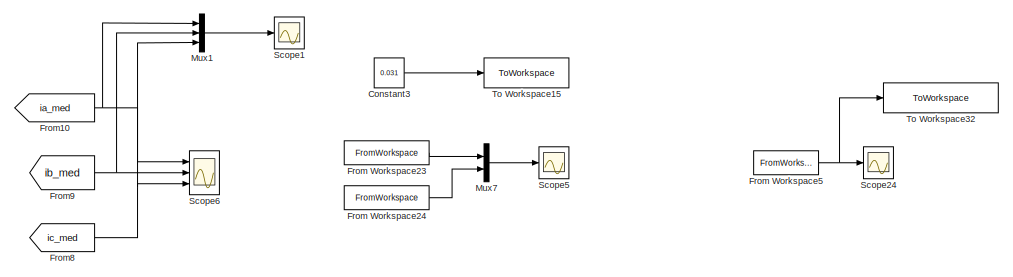
[diagram: root canvas - part 1/5, top right region]
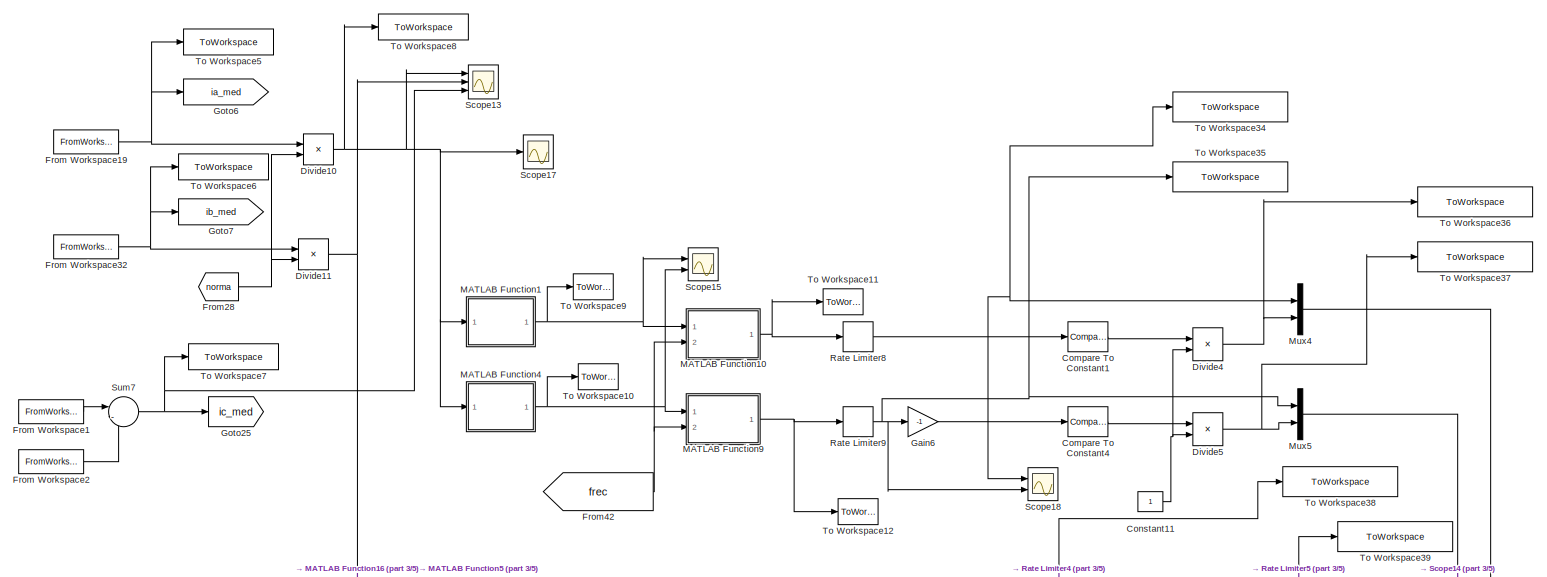
[diagram: root canvas - part 2/5, central region]
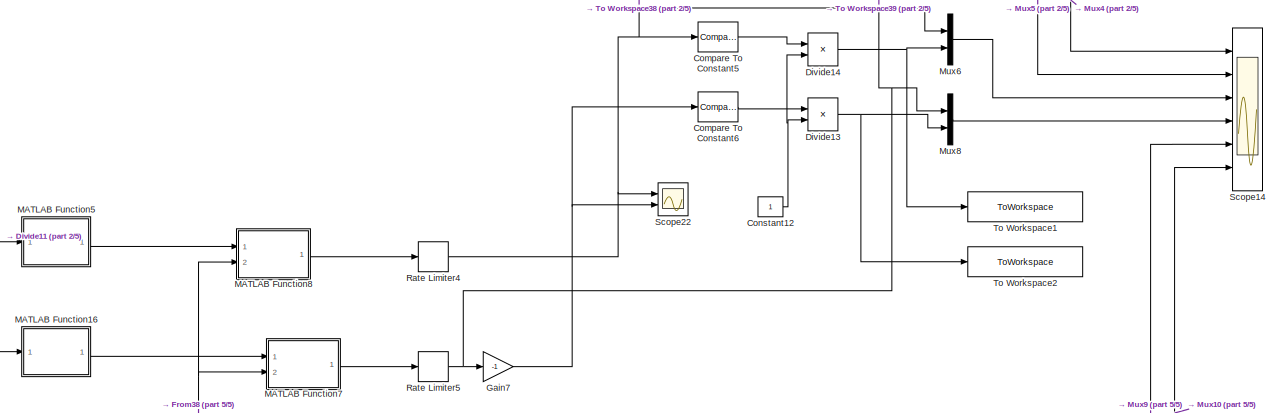
[diagram: root canvas - part 3/5, middle right region]
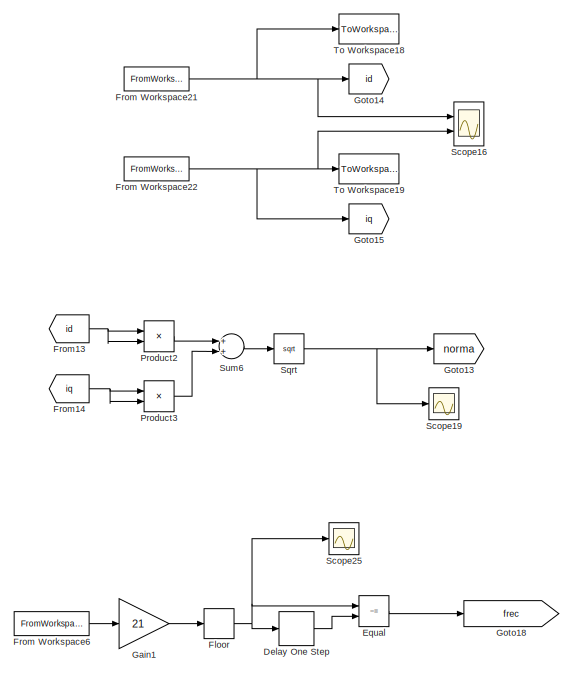
[diagram: root canvas - part 4/5, bottom left region]
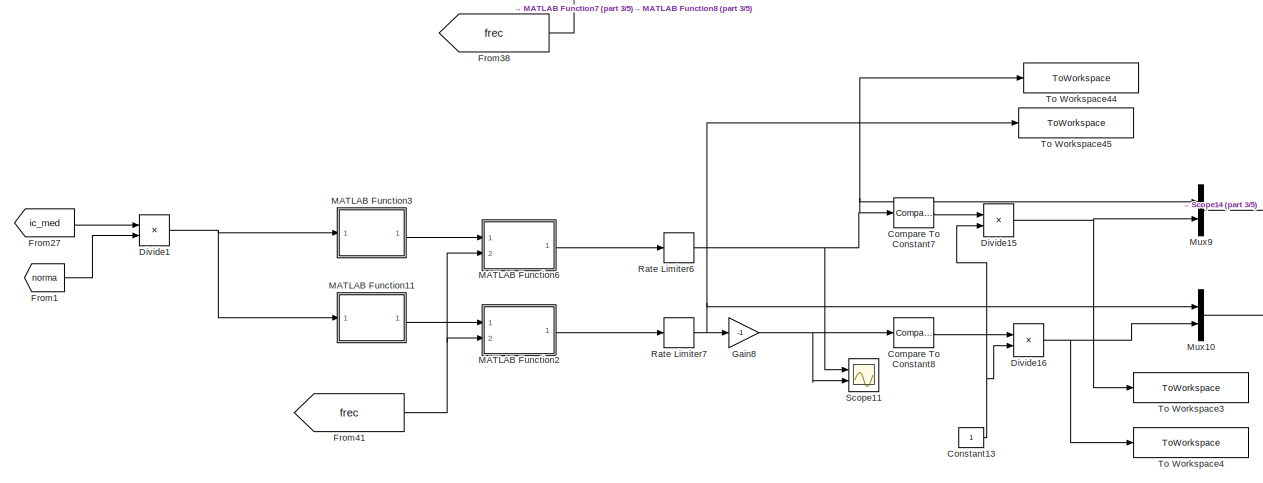
[diagram: root canvas - part 5/5, bottom center region]
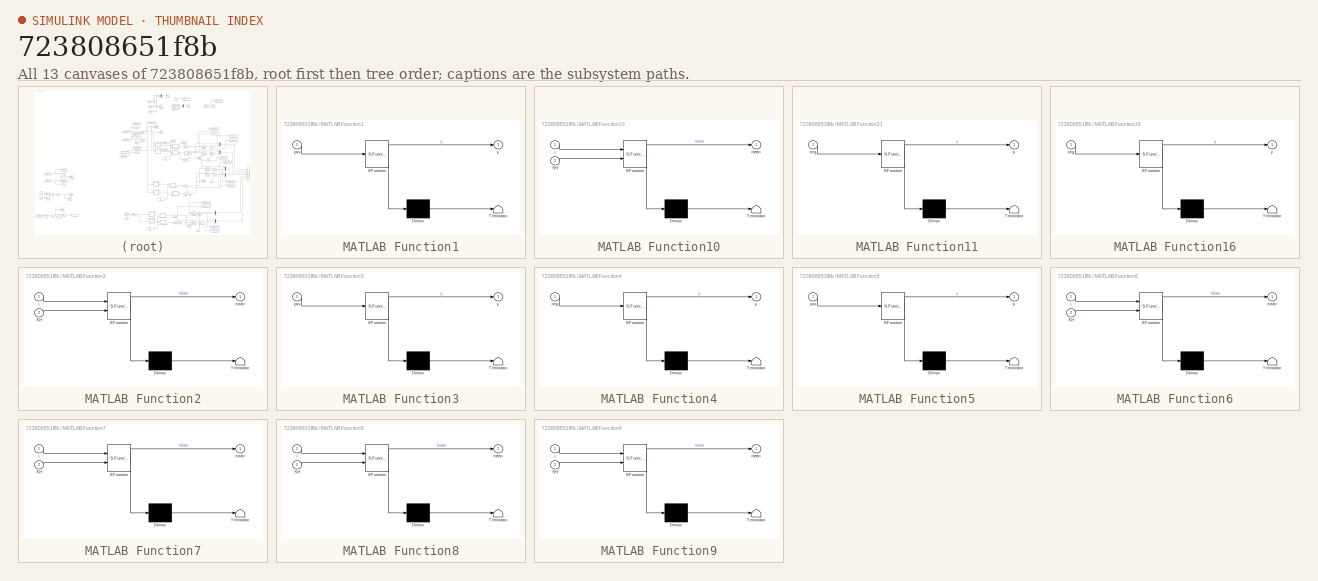
[diagram: thumbnail index - all 13 canvases of the model, root first then tree order]
MODEL slx_723808651f8b
KIND model
CONFIG AbsTol = auto
CONFIG FixedStep = Ts
CONFIG MaxStep = 1e-3
CONFIG MinStep = auto
CONFIG RelTol = 1e-4
CONFIG SampleTimeConstraint = Unconstrained
CONFIG Solver = ode3
CONFIG SolverMode = Auto
CONFIG SolverName = ode3
CONFIG StartTime = 0.0
CONFIG StopTime = 3
BLOCK [Reference] Compare To Constant1  REF=simulink/Logic and Bit
Operations/Compare
To Constant
  OutDataTypeStr = boolean
  Ports = [1, 1]
  SourceBlock = simulink/Logic and Bit\nOperations/Compare\nTo Constant
  SourceType = Compare To Constant
  ZeroCross = on
  const = 0.031
  relop = <
BLOCK [Reference] Compare To Constant4  REF=simulink/Logic and Bit
Operations/Compare
To Constant
  OutDataTypeStr = boolean
  Ports = [1, 1]
  SourceBlock = simulink/Logic and Bit\nOperations/Compare\nTo Constant
  SourceType = Compare To Constant
  ZeroCross = on
  const = -0.031
  relop = >
BLOCK [Reference] Compare To Constant5  REF=simulink/Logic and Bit
Operations/Compare
To Constant
  OutDataTypeStr = boolean
  Ports = [1, 1]
  SourceBlock = simulink/Logic and Bit\nOperations/Compare\nTo Constant
  SourceType = Compare To Constant
  ZeroCross = on
  const = 0.031
  relop = <
BLOCK [Reference] Compare To Constant6  REF=simulink/Logic and Bit
Operations/Compare
To Constant
  OutDataTypeStr = boolean
  Ports = [1, 1]
  SourceBlock = simulink/Logic and Bit\nOperations/Compare\nTo Constant
  SourceType = Compare To Constant
  ZeroCross = on
  const = -0.031
  relop = >
BLOCK [Reference] Compare To Constant7  REF=simulink/Logic and Bit
Operations/Compare
To Constant
  OutDataTypeStr = boolean
  Ports = [1, 1]
  SourceBlock = simulink/Logic and Bit\nOperations/Compare\nTo Constant
  SourceType = Compare To Constant
  ZeroCross = on
  const = 0.031
  relop = <
BLOCK [Reference] Compare To Constant8  REF=simulink/Logic and Bit
Operations/Compare
To Constant
  OutDataTypeStr = boolean
  Ports = [1, 1]
  SourceBlock = simulink/Logic and Bit\nOperations/Compare\nTo Constant
  SourceType = Compare To Constant
  ZeroCross = on
  const = -0.031
  relop = >
BLOCK [Constant] Constant11
BLOCK [Constant] Constant12
BLOCK [Constant] Constant13
BLOCK [Constant] Constant3
  Value = 0.031
BLOCK [Delay] Delay One Step
  DelayLength = 1
  InputPortMap = u0
  Ports = [1, 1]
BLOCK [Product] Divide1
  InputSameDT = off
  Inputs = */
  OutDataTypeStr = Inherit: Inherit via internal rule
  Ports = [2, 1]
  RndMeth = Floor
  SaturateOnIntegerOverflow = off
BLOCK [Product] Divide10
  InputSameDT = off
  Inputs = */
  OutDataTypeStr = Inherit: Inherit via internal rule
  Ports = [2, 1]
  RndMeth = Floor
  SaturateOnIntegerOverflow = off
BLOCK [Product] Divide11
  InputSameDT = off
  Inputs = */
  OutDataTypeStr = Inherit: Inherit via internal rule
  Ports = [2, 1]
  RndMeth = Floor
  SaturateOnIntegerOverflow = off
BLOCK [Product] Divide13
  InputSameDT = off
  Inputs = **
  OutDataTypeStr = Inherit: Inherit via internal rule
  Ports = [2, 1]
  RndMeth = Floor
  SaturateOnIntegerOverflow = off
BLOCK [Product] Divide14
  InputSameDT = off
  Inputs = **
  OutDataTypeStr = Inherit: Inherit via internal rule
  Ports = [2, 1]
  RndMeth = Floor
  SaturateOnIntegerOverflow = off
BLOCK [Product] Divide15
  InputSameDT = off
  Inputs = **
  OutDataTypeStr = Inherit: Inherit via internal rule
  Ports = [2, 1]
  RndMeth = Floor
  SaturateOnIntegerOverflow = off
BLOCK [Product] Divide16
  InputSameDT = off
  Inputs = **
  OutDataTypeStr = Inherit: Inherit via internal rule
  Ports = [2, 1]
  RndMeth = Floor
  SaturateOnIntegerOverflow = off
BLOCK [Product] Divide4
  InputSameDT = off
  Inputs = **
  OutDataTypeStr = Inherit: Inherit via internal rule
  Ports = [2, 1]
  RndMeth = Floor
  SaturateOnIntegerOverflow = off
BLOCK [Product] Divide5
  InputSameDT = off
  Inputs = **
  OutDataTypeStr = Inherit: Inherit via internal rule
  Ports = [2, 1]
  RndMeth = Floor
  SaturateOnIntegerOverflow = off
BLOCK [RelationalOperator] Equal
  InputSameDT = off
  Operator = ~=
  OutDataTypeStr = boolean
  Ports = [2, 1]
BLOCK [Rounding] Floor
BLOCK [FromWorkspace] From Workspace1
  OutputAfterFinalValue = Setting to zero
  SampleTime = Tsc
  VariableName = ia_med_from
  ZeroCross = on
BLOCK [FromWorkspace] From Workspace19
  OutputAfterFinalValue = Setting to zero
  SampleTime = Tsc
  VariableName = ia_med_from
  ZeroCross = on
BLOCK [FromWorkspace] From Workspace2
  OutputAfterFinalValue = Setting to zero
  SampleTime = Tsc
  VariableName = ib_med_from
  ZeroCross = on
BLOCK [FromWorkspace] From Workspace21
  OutputAfterFinalValue = Setting to zero
  SampleTime = Tsc
  VariableName = id_from
  ZeroCross = on
BLOCK [FromWorkspace] From Workspace22
  OutputAfterFinalValue = Setting to zero
  SampleTime = Tsc
  VariableName = iq_from
  ZeroCross = on
BLOCK [FromWorkspace] From Workspace23
  OutputAfterFinalValue = Setting to zero
  SampleTime = Tsc
  VariableName = tita_med_from
  ZeroCross = on
BLOCK [FromWorkspace] From Workspace24
  OutputAfterFinalValue = Setting to zero
  SampleTime = Tsc
  VariableName = tita_est_from
  ZeroCross = on
BLOCK [FromWorkspace] From Workspace32
  OutputAfterFinalValue = Setting to zero
  SampleTime = Tsc
  VariableName = ib_med_from
  ZeroCross = on
BLOCK [FromWorkspace] From Workspace5
  OutputAfterFinalValue = Setting to zero
  SampleTime = Tsc
  VariableName = w_med_from
  ZeroCross = on
BLOCK [FromWorkspace] From Workspace6
  OutputAfterFinalValue = Setting to zero
  SampleTime = Tsc
  VariableName = tita_med_from
  ZeroCross = on
BLOCK [From] From1
  GotoTag = norma
BLOCK [From] From10
  GotoTag = ia_med
BLOCK [From] From13
  GotoTag = id
BLOCK [From] From14
  GotoTag = iq
BLOCK [From] From27
  GotoTag = ic_med
BLOCK [From] From28
  GotoTag = norma
BLOCK [From] From38
  GotoTag = frec
BLOCK [From] From41
  GotoTag = frec
BLOCK [From] From42
  GotoTag = frec
BLOCK [From] From8
  GotoTag = ic_med
BLOCK [From] From9
  GotoTag = ib_med
BLOCK [Gain] Gain1
  Gain = 21
  OutDataTypeStr = Inherit: Inherit via internal rule
  ParamDataTypeStr = Inherit: Inherit via internal rule
  SaturateOnIntegerOverflow = off
BLOCK [Gain] Gain6
  Gain = -1
  OutDataTypeStr = Inherit: Inherit via internal rule
  ParamDataTypeStr = Inherit: Inherit via internal rule
  SaturateOnIntegerOverflow = off
BLOCK [Gain] Gain7
  Gain = -1
  OutDataTypeStr = Inherit: Inherit via internal rule
  ParamDataTypeStr = Inherit: Inherit via internal rule
  SaturateOnIntegerOverflow = off
BLOCK [Gain] Gain8
  Gain = -1
  OutDataTypeStr = Inherit: Inherit via internal rule
  ParamDataTypeStr = Inherit: Inherit via internal rule
  SaturateOnIntegerOverflow = off
BLOCK [Goto] Goto13
  GotoTag = norma
BLOCK [Goto] Goto14
  GotoTag = id
BLOCK [Goto] Goto15
  GotoTag = iq
BLOCK [Goto] Goto18
  GotoTag = frec
BLOCK [Goto] Goto25
  GotoTag = ic_med
BLOCK [Goto] Goto6
  GotoTag = ia_med
BLOCK [Goto] Goto7
  GotoTag = ib_med
BLOCK [SubSystem] MATLAB Function1
  ErrorFcn = Stateflow.Translate.translate
  PermitHierarchicalResolution = ExplicitOnly
  Ports = [1, 1]
  RequestExecContextInheritance = off
  SFBlockType = MATLAB Function
  TreatAsAtomicUnit = on
BLOCK [Demux] MATLAB Function1/ Demux 
  DisplayOption = bar
  Outputs = 1
  Ports = [1, 1]
BLOCK [S-Function] MATLAB Function1/ SFunction 
  EnableBusSupport = on
  FunctionName = sf_sfun
  PortCounts = [1 2]
  Ports = [1, 2]
  Tag = Stateflow S-Function generico_f 2
BLOCK [Terminator] MATLAB Function1/ Terminator 
BLOCK [Inport] MATLAB Function1/pos
  IconDisplay = Port number
BLOCK [Outport] MATLAB Function1/y
  IconDisplay = Port number
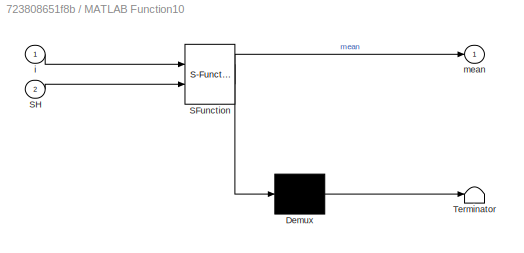
BLOCK [SubSystem] MATLAB Function10
  ErrorFcn = Stateflow.Translate.translate
  PermitHierarchicalResolution = ExplicitOnly
  Ports = [2, 1]
  RequestExecContextInheritance = off
  SFBlockType = MATLAB Function
  TreatAsAtomicUnit = on
BLOCK [Demux] MATLAB Function10/ Demux 
  DisplayOption = bar
  Outputs = 1
  Ports = [1, 1]
BLOCK [S-Function] MATLAB Function10/ SFunction 
  EnableBusSupport = on
  FunctionName = sf_sfun
  PortCounts = [2 2]
  Ports = [2, 2]
  Tag = Stateflow S-Function generico_f 13
BLOCK [Terminator] MATLAB Function10/ Terminator 
BLOCK [Inport] MATLAB Function10/SH
  IconDisplay = Port number
  Port = 2
BLOCK [Inport] MATLAB Function10/i
  IconDisplay = Port number
BLOCK [Outport] MATLAB Function10/mean
  IconDisplay = Port number
BLOCK [SubSystem] MATLAB Function11
  ErrorFcn = Stateflow.Translate.translate
  PermitHierarchicalResolution = ExplicitOnly
  Ports = [1, 1]
  RequestExecContextInheritance = off
  SFBlockType = MATLAB Function
  TreatAsAtomicUnit = on
BLOCK [Demux] MATLAB Function11/ Demux 
  DisplayOption = bar
  Outputs = 1
  Ports = [1, 1]
BLOCK [S-Function] MATLAB Function11/ SFunction 
  EnableBusSupport = on
  FunctionName = sf_sfun
  PortCounts = [1 2]
  Ports = [1, 2]
  Tag = Stateflow S-Function generico_f 11
BLOCK [Terminator] MATLAB Function11/ Terminator 
BLOCK [Inport] MATLAB Function11/neg
  IconDisplay = Port number
BLOCK [Outport] MATLAB Function11/y
  IconDisplay = Port number
BLOCK [SubSystem] MATLAB Function16
  ErrorFcn = Stateflow.Translate.translate
  PermitHierarchicalResolution = ExplicitOnly
  Ports = [1, 1]
  RequestExecContextInheritance = off
  SFBlockType = MATLAB Function
  TreatAsAtomicUnit = on
BLOCK [Demux] MATLAB Function16/ Demux 
  DisplayOption = bar
  Outputs = 1
  Ports = [1, 1]
BLOCK [S-Function] MATLAB Function16/ SFunction 
  EnableBusSupport = on
  FunctionName = sf_sfun
  PortCounts = [1 2]
  Ports = [1, 2]
  Tag = Stateflow S-Function generico_f 8
BLOCK [Terminator] MATLAB Function16/ Terminator 
BLOCK [Inport] MATLAB Function16/neg
  IconDisplay = Port number
BLOCK [Outport] MATLAB Function16/y
  IconDisplay = Port number
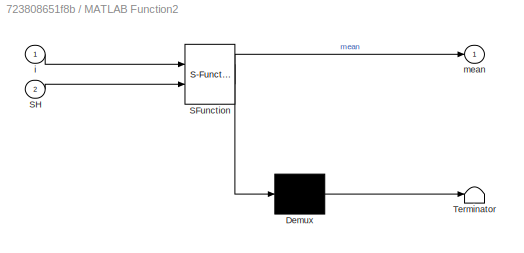
BLOCK [SubSystem] MATLAB Function2
  ErrorFcn = Stateflow.Translate.translate
  PermitHierarchicalResolution = ExplicitOnly
  Ports = [2, 1]
  RequestExecContextInheritance = off
  SFBlockType = MATLAB Function
  TreatAsAtomicUnit = on
BLOCK [Demux] MATLAB Function2/ Demux 
  DisplayOption = bar
  Outputs = 1
  Ports = [1, 1]
BLOCK [S-Function] MATLAB Function2/ SFunction 
  EnableBusSupport = on
  FunctionName = sf_sfun
  PortCounts = [2 2]
  Ports = [2, 2]
  Tag = Stateflow S-Function generico_f 3
BLOCK [Terminator] MATLAB Function2/ Terminator 
BLOCK [Inport] MATLAB Function2/SH
  IconDisplay = Port number
  Port = 2
BLOCK [Inport] MATLAB Function2/i
  IconDisplay = Port number
BLOCK [Outport] MATLAB Function2/mean
  IconDisplay = Port number
BLOCK [SubSystem] MATLAB Function3
  ErrorFcn = Stateflow.Translate.translate
  PermitHierarchicalResolution = ExplicitOnly
  Ports = [1, 1]
  RequestExecContextInheritance = off
  SFBlockType = MATLAB Function
  TreatAsAtomicUnit = on
BLOCK [Demux] MATLAB Function3/ Demux 
  DisplayOption = bar
  Outputs = 1
  Ports = [1, 1]
BLOCK [S-Function] MATLAB Function3/ SFunction 
  EnableBusSupport = on
  FunctionName = sf_sfun
  PortCounts = [1 2]
  Ports = [1, 2]
  Tag = Stateflow S-Function generico_f 10
BLOCK [Terminator] MATLAB Function3/ Terminator 
BLOCK [Inport] MATLAB Function3/pos
  IconDisplay = Port number
BLOCK [Outport] MATLAB Function3/y
  IconDisplay = Port number
BLOCK [SubSystem] MATLAB Function4
  ErrorFcn = Stateflow.Translate.translate
  PermitHierarchicalResolution = ExplicitOnly
  Ports = [1, 1]
  RequestExecContextInheritance = off
  SFBlockType = MATLAB Function
  TreatAsAtomicUnit = on
BLOCK [Demux] MATLAB Function4/ Demux 
  DisplayOption = bar
  Outputs = 1
  Ports = [1, 1]
BLOCK [S-Function] MATLAB Function4/ SFunction 
  EnableBusSupport = on
  FunctionName = sf_sfun
  PortCounts = [1 2]
  Ports = [1, 2]
  Tag = Stateflow S-Function generico_f 6
BLOCK [Terminator] MATLAB Function4/ Terminator 
BLOCK [Inport] MATLAB Function4/neg
  IconDisplay = Port number
BLOCK [Outport] MATLAB Function4/y
  IconDisplay = Port number
BLOCK [SubSystem] MATLAB Function5
  ErrorFcn = Stateflow.Translate.translate
  PermitHierarchicalResolution = ExplicitOnly
  Ports = [1, 1]
  RequestExecContextInheritance = off
  SFBlockType = MATLAB Function
  TreatAsAtomicUnit = on
BLOCK [Demux] MATLAB Function5/ Demux 
  DisplayOption = bar
  Outputs = 1
  Ports = [1, 1]
BLOCK [S-Function] MATLAB Function5/ SFunction 
  EnableBusSupport = on
  FunctionName = sf_sfun
  PortCounts = [1 2]
  Ports = [1, 2]
  Tag = Stateflow S-Function generico_f 9
BLOCK [Terminator] MATLAB Function5/ Terminator 
BLOCK [Inport] MATLAB Function5/pos
  IconDisplay = Port number
BLOCK [Outport] MATLAB Function5/y
  IconDisplay = Port number
BLOCK [SubSystem] MATLAB Function6
  ErrorFcn = Stateflow.Translate.translate
  PermitHierarchicalResolution = ExplicitOnly
  Ports = [2, 1]
  RequestExecContextInheritance = off
  SFBlockType = MATLAB Function
  TreatAsAtomicUnit = on
BLOCK [Demux] MATLAB Function6/ Demux 
  DisplayOption = bar
  Outputs = 1
  Ports = [1, 1]
BLOCK [S-Function] MATLAB Function6/ SFunction 
  EnableBusSupport = on
  FunctionName = sf_sfun
  PortCounts = [2 2]
  Ports = [2, 2]
  Tag = Stateflow S-Function generico_f 4
BLOCK [Terminator] MATLAB Function6/ Terminator 
BLOCK [Inport] MATLAB Function6/SH
  IconDisplay = Port number
  Port = 2
BLOCK [Inport] MATLAB Function6/i
  IconDisplay = Port number
BLOCK [Outport] MATLAB Function6/mean
  IconDisplay = Port number
BLOCK [SubSystem] MATLAB Function7
  ErrorFcn = Stateflow.Translate.translate
  PermitHierarchicalResolution = ExplicitOnly
  Ports = [2, 1]
  RequestExecContextInheritance = off
  SFBlockType = MATLAB Function
  TreatAsAtomicUnit = on
BLOCK [Demux] MATLAB Function7/ Demux 
  DisplayOption = bar
  Outputs = 1
  Ports = [1, 1]
BLOCK [S-Function] MATLAB Function7/ SFunction 
  EnableBusSupport = on
  FunctionName = sf_sfun
  PortCounts = [2 2]
  Ports = [2, 2]
  Tag = Stateflow S-Function generico_f 5
BLOCK [Terminator] MATLAB Function7/ Terminator 
BLOCK [Inport] MATLAB Function7/SH
  IconDisplay = Port number
  Port = 2
BLOCK [Inport] MATLAB Function7/i
  IconDisplay = Port number
BLOCK [Outport] MATLAB Function7/mean
  IconDisplay = Port number
BLOCK [SubSystem] MATLAB Function8
  ErrorFcn = Stateflow.Translate.translate
  PermitHierarchicalResolution = ExplicitOnly
  Ports = [2, 1]
  RequestExecContextInheritance = off
  SFBlockType = MATLAB Function
  TreatAsAtomicUnit = on
BLOCK [Demux] MATLAB Function8/ Demux 
  DisplayOption = bar
  Outputs = 1
  Ports = [1, 1]
BLOCK [S-Function] MATLAB Function8/ SFunction 
  EnableBusSupport = on
  FunctionName = sf_sfun
  PortCounts = [2 2]
  Ports = [2, 2]
  Tag = Stateflow S-Function generico_f 12
BLOCK [Terminator] MATLAB Function8/ Terminator 
BLOCK [Inport] MATLAB Function8/SH
  IconDisplay = Port number
  Port = 2
BLOCK [Inport] MATLAB Function8/i
  IconDisplay = Port number
BLOCK [Outport] MATLAB Function8/mean
  IconDisplay = Port number
BLOCK [SubSystem] MATLAB Function9
  ErrorFcn = Stateflow.Translate.translate
  PermitHierarchicalResolution = ExplicitOnly
  Ports = [2, 1]
  RequestExecContextInheritance = off
  SFBlockType = MATLAB Function
  TreatAsAtomicUnit = on
BLOCK [Demux] MATLAB Function9/ Demux 
  DisplayOption = bar
  Outputs = 1
  Ports = [1, 1]
BLOCK [S-Function] MATLAB Function9/ SFunction 
  EnableBusSupport = on
  FunctionName = sf_sfun
  PortCounts = [2 2]
  Ports = [2, 2]
  Tag = Stateflow S-Function generico_f 14
BLOCK [Terminator] MATLAB Function9/ Terminator 
BLOCK [Inport] MATLAB Function9/SH
  IconDisplay = Port number
  Port = 2
BLOCK [Inport] MATLAB Function9/i
  IconDisplay = Port number
BLOCK [Outport] MATLAB Function9/mean
  IconDisplay = Port number
BLOCK [Mux] Mux1
  DisplayOption = bar
  Inputs = 3
  Ports = [3, 1]
BLOCK [Mux] Mux10
  DisplayOption = bar
  Inputs = 2
  Ports = [2, 1]
BLOCK [Mux] Mux4
  DisplayOption = bar
  Inputs = 2
  Ports = [2, 1]
BLOCK [Mux] Mux5
  DisplayOption = bar
  Inputs = 2
  Ports = [2, 1]
BLOCK [Mux] Mux6
  DisplayOption = bar
  Inputs = 2
  Ports = [2, 1]
BLOCK [Mux] Mux7
  DisplayOption = bar
  Inputs = 2
  Ports = [2, 1]
BLOCK [Mux] Mux8
  DisplayOption = bar
  Inputs = 2
  Ports = [2, 1]
BLOCK [Mux] Mux9
  DisplayOption = bar
  Inputs = 2
  Ports = [2, 1]
BLOCK [Product] Product2
  InputSameDT = off
  OutDataTypeStr = Inherit: Inherit via internal rule
  Ports = [2, 1]
  RndMeth = Floor
  SaturateOnIntegerOverflow = off
BLOCK [Product] Product3
  InputSameDT = off
  OutDataTypeStr = Inherit: Inherit via internal rule
  Ports = [2, 1]
  RndMeth = Floor
  SaturateOnIntegerOverflow = off
BLOCK [RateLimiter] Rate Limiter4
  FallingSlewLimit = -40
  RisingSlewLimit = 100000
BLOCK [RateLimiter] Rate Limiter5
  FallingSlewLimit = -40
  RisingSlewLimit = 100000
BLOCK [RateLimiter] Rate Limiter6
  FallingSlewLimit = -40
  RisingSlewLimit = 100000
BLOCK [RateLimiter] Rate Limiter7
  FallingSlewLimit = -40
  RisingSlewLimit = 100000
BLOCK [RateLimiter] Rate Limiter8
  FallingSlewLimit = -40
  RisingSlewLimit = 100000
BLOCK [RateLimiter] Rate Limiter9
  FallingSlewLimit = -40
  RisingSlewLimit = 100000
BLOCK [Scope] Scope1
  DataFormat = StructureWithTime
  Floating = off
  LimitDataPoints = off
  NumInputPorts = 1
  Ports = [1]
  TimeRange = 1.2
  YMax = 0.70025
  YMin = 0.6965
  ZoomMode = xonly
BLOCK [Scope] Scope11
  DataFormat = StructureWithTime
  Decimation = 10
  Floating = off
  LimitDataPoints = off
  NumInputPorts = 2
  Ports = [2]
  SaveName = ScopeData11
  TimeRange = 1.2
  YMax = 178.833~5
  YMin = -1066.28~-5
BLOCK [Scope] Scope13
  DataFormat = StructureWithTime
  Floating = off
  LimitDataPoints = off
  NumInputPorts = 3
  Ports = [3]
  SaveName = ScopeData14
  TimeRange = 1.2
  YMax = 178.833~5~5
  YMin = -1066.28~-5~-5
  ZoomMode = xonly
BLOCK [Scope] Scope14
  DataFormat = StructureWithTime
  Decimation = 2
  Floating = off
  LimitDataPoints = off
  NumInputPorts = 6
  Ports = [6]
  SaveName = ScopeData12
  TimeRange = 0.3075862068965519
  YMax = 0.952703~1~1~1~1~1
  YMin = 0~0~0~0~0~0
BLOCK [Scope] Scope15
  DataFormat = StructureWithTime
  Floating = off
  LimitDataPoints = off
  NumInputPorts = 2
  Ports = [2]
  SaveName = ScopeData19
  TimeRange = 1.2
  YMax = 178.833~5
  YMin = -1066.28~-5
  ZoomMode = xonly
BLOCK [Scope] Scope16
  DataFormat = StructureWithTime
  Decimation = 10
  Floating = off
  LimitDataPoints = off
  NumInputPorts = 2
  Ports = [2]
  SaveName = ScopeData18
  TimeRange = 1.2
  YMax = 1.5~5
  YMin = -0.5~-5
  ZoomMode = yonly
BLOCK [Scope] Scope17
  DataFormat = StructureWithTime
  Floating = off
  LimitDataPoints = off
  NumInputPorts = 1
  Ports = [1]
  SaveName = ScopeData22
  TimeRange = 1.2
  YMax = 178.833
  YMin = -1066.28
  ZoomMode = xonly
BLOCK [Scope] Scope18
  DataFormat = StructureWithTime
  Decimation = 10
  Floating = off
  LimitDataPoints = off
  NumInputPorts = 2
  Ports = [2]
  SaveName = ScopeData20
  TimeRange = 1.2
  YMax = 178.833~5
  YMin = -1066.28~-5
  ZoomMode = xonly
BLOCK [Scope] Scope19
  DataFormat = StructureWithTime
  Decimation = 10
  Floating = off
  LimitDataPoints = off
  NumInputPorts = 1
  Ports = [1]
  SaveName = ScopeData21
  TimeRange = 1.2
  YMax = 178.83301
  YMin = -1066.28418
BLOCK [Scope] Scope22
  DataFormat = StructureWithTime
  Decimation = 10
  Floating = off
  LimitDataPoints = off
  NumInputPorts = 2
  Ports = [2]
  SaveName = ScopeData6
  TimeRange = 1.2
  YMax = 178.833~5
  YMin = -1066.28~-5
BLOCK [Scope] Scope24
  Floating = off
  LimitDataPoints = off
  NumInputPorts = 1
  Ports = [1]
  SaveName = ScopeData28
  TimeRange = 0.129
  YMax = 0.55
  YMin = 0.45
BLOCK [Scope] Scope25
  DataFormat = StructureWithTime
  Decimation = 10
  Floating = off
  LimitDataPoints = off
  NumInputPorts = 1
  Ports = [1]
  SaveName = ScopeData29
  TimeRange = 1.2
  YMax = 98.54179
  YMin = 70.17554
BLOCK [Scope] Scope5
  DataFormat = StructureWithTime
  Decimation = 10
  Floating = off
  LimitDataPoints = off
  NumInputPorts = 1
  Ports = [1]
  SaveName = ScopeData4
  TimeRange = 1.2
  YMax = 0.70025
  YMin = 0.6965
BLOCK [Scope] Scope6
  DataFormat = StructureWithTime
  Floating = off
  LimitDataPoints = off
  NumInputPorts = 3
  Ports = [3]
  SaveName = ScopeData5
  TimeRange = 1.2
  YMax = 1.5~5~5
  YMin = -0.5~-5~-5
  ZoomMode = xonly
BLOCK [Sqrt] Sqrt
BLOCK [Sum] Sum6
  InputSameDT = off
  OutDataTypeStr = Inherit: Inherit via internal rule
  Ports = [2, 1]
  SaturateOnIntegerOverflow = off
BLOCK [Sum] Sum7
  IconShape = round
  InputSameDT = off
  Inputs = |--
  OutDataTypeStr = Inherit: Inherit via internal rule
  Ports = [2, 1]
  SaturateOnIntegerOverflow = off
BLOCK [ToWorkspace] To Workspace1
  FixptAsFi = on
  MaxDataPoints = inf
  Ports = [1]
  SampleTime = -1
  Save2DSignal = 3-D array (concatenate along third dimension)
  SaveFormat = Timeseries
  VariableName = Finv_b_arriba
BLOCK [ToWorkspace] To Workspace10
  FixptAsFi = on
  MaxDataPoints = inf
  Ports = [1]
  SampleTime = Tsc
  Save2DSignal = 3-D array (concatenate along third dimension)
  SaveFormat = Timeseries
  VariableName = neg
BLOCK [ToWorkspace] To Workspace11
  FixptAsFi = on
  MaxDataPoints = inf
  Ports = [1]
  SampleTime = Tsc
  Save2DSignal = 3-D array (concatenate along third dimension)
  SaveFormat = Timeseries
  VariableName = Apos
BLOCK [ToWorkspace] To Workspace12
  FixptAsFi = on
  MaxDataPoints = inf
  Ports = [1]
  SampleTime = Tsc
  Save2DSignal = 3-D array (concatenate along third dimension)
  SaveFormat = Timeseries
  VariableName = Aneg
BLOCK [ToWorkspace] To Workspace15
  FixptAsFi = on
  MaxDataPoints = inf
  Ports = [1]
  SampleTime = -1
  Save2DSignal = 3-D array (concatenate along third dimension)
  SaveFormat = Timeseries
  VariableName = th_inversor
BLOCK [ToWorkspace] To Workspace18
  FixptAsFi = on
  MaxDataPoints = inf
  Ports = [1]
  SampleTime = -1
  Save2DSignal = 3-D array (concatenate along third dimension)
  SaveFormat = Timeseries
  VariableName = id
BLOCK [ToWorkspace] To Workspace19
  FixptAsFi = on
  MaxDataPoints = inf
  Ports = [1]
  SampleTime = -1
  Save2DSignal = 3-D array (concatenate along third dimension)
  SaveFormat = Timeseries
  VariableName = iq
BLOCK [ToWorkspace] To Workspace2
  FixptAsFi = on
  MaxDataPoints = inf
  Ports = [1]
  SampleTime = -1
  Save2DSignal = 3-D array (concatenate along third dimension)
  SaveFormat = Timeseries
  VariableName = Finv_b_abajo
BLOCK [ToWorkspace] To Workspace3
  FixptAsFi = on
  MaxDataPoints = inf
  Ports = [1]
  SampleTime = -1
  Save2DSignal = 3-D array (concatenate along third dimension)
  SaveFormat = Timeseries
  VariableName = Finv_c_arriba
BLOCK [ToWorkspace] To Workspace32
  FixptAsFi = on
  MaxDataPoints = inf
  Ports = [1]
  SampleTime = Tsc
  Save2DSignal = 3-D array (concatenate along third dimension)
  SaveFormat = Timeseries
  VariableName = w
BLOCK [ToWorkspace] To Workspace34
  FixptAsFi = on
  MaxDataPoints = inf
  Ports = [1]
  SampleTime = -1
  Save2DSignal = 3-D array (concatenate along third dimension)
  SaveFormat = Timeseries
  VariableName = valormedio_a_arriba
BLOCK [ToWorkspace] To Workspace35
  FixptAsFi = on
  MaxDataPoints = inf
  Ports = [1]
  SampleTime = -1
  Save2DSignal = 3-D array (concatenate along third dimension)
  SaveFormat = Timeseries
  VariableName = valormedio_a_abajo
BLOCK [ToWorkspace] To Workspace36
  FixptAsFi = on
  MaxDataPoints = inf
  Ports = [1]
  SampleTime = -1
  Save2DSignal = 3-D array (concatenate along third dimension)
  SaveFormat = Timeseries
  VariableName = Finv_a_arriba
BLOCK [ToWorkspace] To Workspace37
  FixptAsFi = on
  MaxDataPoints = inf
  Ports = [1]
  SampleTime = -1
  Save2DSignal = 3-D array (concatenate along third dimension)
  SaveFormat = Timeseries
  VariableName = Finv_a_abajo
BLOCK [ToWorkspace] To Workspace38
  FixptAsFi = on
  MaxDataPoints = inf
  Ports = [1]
  SampleTime = -1
  Save2DSignal = 3-D array (concatenate along third dimension)
  SaveFormat = Timeseries
  VariableName = valormedio_b_arriba
BLOCK [ToWorkspace] To Workspace39
  FixptAsFi = on
  MaxDataPoints = inf
  Ports = [1]
  SampleTime = -1
  Save2DSignal = 3-D array (concatenate along third dimension)
  SaveFormat = Timeseries
  VariableName = valormedio_b_abajo
BLOCK [ToWorkspace] To Workspace4
  FixptAsFi = on
  MaxDataPoints = inf
  Ports = [1]
  SampleTime = -1
  Save2DSignal = 3-D array (concatenate along third dimension)
  SaveFormat = Timeseries
  VariableName = Finv_c_abajo
BLOCK [ToWorkspace] To Workspace44
  FixptAsFi = on
  MaxDataPoints = inf
  Ports = [1]
  SampleTime = -1
  Save2DSignal = 3-D array (concatenate along third dimension)
  SaveFormat = Timeseries
  VariableName = valormedio_c_arriba
BLOCK [ToWorkspace] To Workspace45
  FixptAsFi = on
  MaxDataPoints = inf
  Ports = [1]
  SampleTime = -1
  Save2DSignal = 3-D array (concatenate along third dimension)
  SaveFormat = Timeseries
  VariableName = valormedio_c_abajo
BLOCK [ToWorkspace] To Workspace5
  FixptAsFi = on
  MaxDataPoints = inf
  Ports = [1]
  SampleTime = Tsc
  Save2DSignal = 3-D array (concatenate along third dimension)
  SaveFormat = Timeseries
  VariableName = ia_med
BLOCK [ToWorkspace] To Workspace6
  FixptAsFi = on
  MaxDataPoints = inf
  Ports = [1]
  SampleTime = Tsc
  Save2DSignal = 3-D array (concatenate along third dimension)
  SaveFormat = Timeseries
  VariableName = ib_med
BLOCK [ToWorkspace] To Workspace7
  FixptAsFi = on
  MaxDataPoints = inf
  Ports = [1]
  SampleTime = Tsc
  Save2DSignal = 3-D array (concatenate along third dimension)
  SaveFormat = Timeseries
  VariableName = ic_med
BLOCK [ToWorkspace] To Workspace8
  FixptAsFi = on
  MaxDataPoints = inf
  Ports = [1]
  SampleTime = Tsc
  Save2DSignal = 3-D array (concatenate along third dimension)
  SaveFormat = Timeseries
  VariableName = ia_med_norm
BLOCK [ToWorkspace] To Workspace9
  FixptAsFi = on
  MaxDataPoints = inf
  Ports = [1]
  SampleTime = Tsc
  Save2DSignal = 3-D array (concatenate along third dimension)
  SaveFormat = Timeseries
  VariableName = pos
LINE Compare To Constant1:1 -> Divide4:1
LINE Compare To Constant4:1 -> Divide5:1
LINE Compare To Constant5:1 -> Divide14:1
LINE Compare To Constant6:1 -> Divide13:1
LINE Compare To Constant7:1 -> Divide15:1
LINE Compare To Constant8:1 -> Divide16:1
NET Constant11:1 -> Divide4:2, Divide5:2
NET Constant12:1 -> Divide13:2, Divide14:2
NET Constant13:1 -> Divide15:2, Divide16:2
LINE Constant3:1 -> To Workspace15:1
LINE Delay One Step:1 -> Equal:2
NET Divide10:1 -> MATLAB Function1:1, MATLAB Function4:1, Scope13:1, Scope17:1, To Workspace8:1
NET Divide11:1 -> MATLAB Function16:1, MATLAB Function5:1, Scope13:2
NET Divide13:1 -> Mux8:2, To Workspace2:1
NET Divide14:1 -> Mux6:2, To Workspace1:1
NET Divide15:1 -> Mux9:2, To Workspace3:1
NET Divide16:1 -> Mux10:2, To Workspace4:1
NET Divide1:1 -> MATLAB Function11:1, MATLAB Function3:1
NET Divide4:1 -> Mux4:2, To Workspace36:1
NET Divide5:1 -> Mux5:2, To Workspace37:1
LINE Equal:1 -> Goto18:1
NET Floor:1 -> Delay One Step:1, Equal:1, Scope25:1
NET From Workspace19:1 -> Divide10:1, Goto6:1, To Workspace5:1
LINE From Workspace1:1 -> Sum7:1
NET From Workspace21:1 -> Goto14:1, Scope16:1, To Workspace18:1
NET From Workspace22:1 -> Goto15:1, Scope16:2, To Workspace19:1
LINE From Workspace23:1 -> Mux7:1
LINE From Workspace24:1 -> Mux7:2
LINE From Workspace2:1 -> Sum7:2
NET From Workspace32:1 -> Divide11:1, Goto7:1, To Workspace6:1
NET From Workspace5:1 -> Scope24:1, To Workspace32:1
LINE From Workspace6:1 -> Gain1:1
NET From10:1 -> Mux1:1, Scope6:1
NET From13:1 -> Product2:1, Product2:2
NET From14:1 -> Product3:1, Product3:2
LINE From1:1 -> Divide1:2
LINE From27:1 -> Divide1:1
NET From28:1 -> Divide10:2, Divide11:2
NET From38:1 -> MATLAB Function7:2, MATLAB Function8:2
NET From41:1 -> MATLAB Function2:2, MATLAB Function6:2
NET From42:1 -> MATLAB Function10:2, MATLAB Function9:2
NET From8:1 -> Mux1:3, Scope6:3
NET From9:1 -> Mux1:2, Scope6:2
LINE Gain1:1 -> Floor:1
LINE Gain6:1 -> Compare To Constant4:1
NET Gain7:1 -> Compare To Constant6:1, Scope22:2
NET Gain8:1 -> Compare To Constant8:1, Scope11:2
NET MATLAB Function10:1 -> Rate Limiter8:1, To Workspace11:1
LINE MATLAB Function11:1 -> MATLAB Function2:1
LINE MATLAB Function16:1 -> MATLAB Function7:1
NET MATLAB Function1:1 -> MATLAB Function10:1, Scope15:1, To Workspace9:1
LINE MATLAB Function2:1 -> Rate Limiter7:1
LINE MATLAB Function3:1 -> MATLAB Function6:1
NET MATLAB Function4:1 -> MATLAB Function9:1, Scope15:2, To Workspace10:1
LINE MATLAB Function5:1 -> MATLAB Function8:1
LINE MATLAB Function6:1 -> Rate Limiter6:1
LINE MATLAB Function7:1 -> Rate Limiter5:1
LINE MATLAB Function8:1 -> Rate Limiter4:1
NET MATLAB Function9:1 -> Rate Limiter9:1, To Workspace12:1
LINE Mux10:1 -> Scope14:6
LINE Mux1:1 -> Scope1:1
LINE Mux4:1 -> Scope14:1
LINE Mux5:1 -> Scope14:2
LINE Mux6:1 -> Scope14:3
LINE Mux7:1 -> Scope5:1
LINE Mux8:1 -> Scope14:4
LINE Mux9:1 -> Scope14:5
LINE Product2:1 -> Sum6:1
LINE Product3:1 -> Sum6:2
NET Rate Limiter4:1 -> Compare To Constant5:1, Mux6:1, Scope22:1, To Workspace38:1
NET Rate Limiter5:1 -> Gain7:1, Mux8:1, To Workspace39:1
NET Rate Limiter6:1 -> Compare To Constant7:1, Mux9:1, Scope11:1, To Workspace44:1
NET Rate Limiter7:1 -> Gain8:1, Mux10:1, To Workspace45:1
NET Rate Limiter8:1 -> Compare To Constant1:1, Mux4:1, Scope18:1, To Workspace34:1
NET Rate Limiter9:1 -> Gain6:1, Mux5:1, Scope18:2, To Workspace35:1
NET Sqrt:1 -> Goto13:1, Scope19:1
LINE Sum6:1 -> Sqrt:1
NET Sum7:1 -> Goto25:1, Scope13:3, To Workspace7:1
note: NET lines group one-source signal fan-out (src -> all destinations, sorted); 1:1 wires keep LINE
CHART MATLAB Function1 states=1 transitions=1
  STATE_LABEL 'eML_blk_kernel()'
  STATE_LABEL 'SCRIPT:\nfunction y = fcn(pos)\n\nif (pos>0);\npos = pos;\n\nelse\n    \npos = 0;\n\nend\n\ny = pos;'
CHART MATLAB Function2 states=1 transitions=1
  STATE_LABEL 'eML_blk_kernel()'
  STATE_LABEL 'SCRIPT:\nfunction mean   = fcn(i, SH)\n\nN=21;\n\npersistent ia_buff;\npersistent n;\npersistent mean_s;\npersistent SH_prev;\npersistent test;\n\n%% Inicializaciones    \nif isempty(ia_buff)\n    ia_buff = zeros(N,1);\nend\n\nif isempty(n)\n    n = 1;\nend\n\nif isempty(mean_s)\n    mean_s = 0.0;\nend\n\nif isempty(SH_prev)\n    SH_prev = 0;\nend\n\nif isempty(test)\n    test = 0;\nend\n\n%% Mean \n\nif (SH == 1) %&& (SH_prev == ...<+271ch>'  <repeated x6 — deduplicated; at blocks: MATLAB Function2, MATLAB Function6, MATLAB Function7, MATLAB Function8, MATLAB Function10, MATLAB Function9>
CHART MATLAB Function6 states=1 transitions=1
  STATE_LABEL 'eML_blk_kernel()'
CHART MATLAB Function7 states=1 transitions=1
  STATE_LABEL 'eML_blk_kernel()'
CHART MATLAB Function4 states=1 transitions=1
  STATE_LABEL 'eML_blk_kernel()'
  STATE_LABEL 'SCRIPT:\nfunction y = fcn(neg)\n\nif (neg<0);\nneg = -neg;\n\nelse\n    \nneg = 0;\n\nend\n\ny = neg;'
CHART MATLAB Function16 states=1 transitions=1
  STATE_LABEL 'eML_blk_kernel()'
  STATE_LABEL 'SCRIPT:\nfunction y = fcn(neg)\n\nif (neg<0);\nneg = -neg;\n\nelse\n    \nneg = 0;\n\nend\n\ny = neg;'
CHART MATLAB Function5 states=1 transitions=1
  STATE_LABEL 'eML_blk_kernel()'
  STATE_LABEL 'SCRIPT:\nfunction y = fcn(pos)\n\nif (pos>0);\npos = pos;\n\nelse\n    \npos = 0;\n\nend\n\ny = pos;'
CHART MATLAB Function3 states=1 transitions=1
  STATE_LABEL 'eML_blk_kernel()'
  STATE_LABEL 'SCRIPT:\nfunction y = fcn(pos)\n\nif (pos>0);\npos = pos;\n\nelse\n    \npos = 0;\n\nend\n\ny = pos;'
CHART MATLAB Function11 states=1 transitions=1
  STATE_LABEL 'eML_blk_kernel()'
  STATE_LABEL 'SCRIPT:\nfunction y = fcn(neg)\n\nif (neg<0);\nneg = -neg;\n\nelse\n    \nneg = 0;\n\nend\n\ny = neg;'
CHART MATLAB Function8 states=1 transitions=1
  STATE_LABEL 'eML_blk_kernel()'
CHART MATLAB Function10 states=1 transitions=1
  STATE_LABEL 'eML_blk_kernel()'
CHART MATLAB Function9 states=1 transitions=1
  STATE_LABEL 'eML_blk_kernel()'
